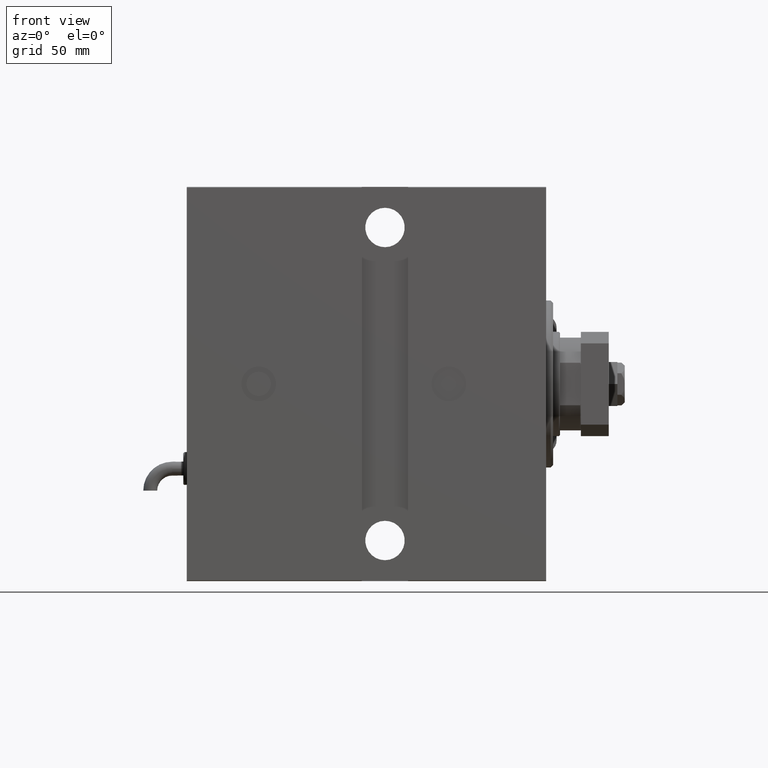
[diagram: clean part render]
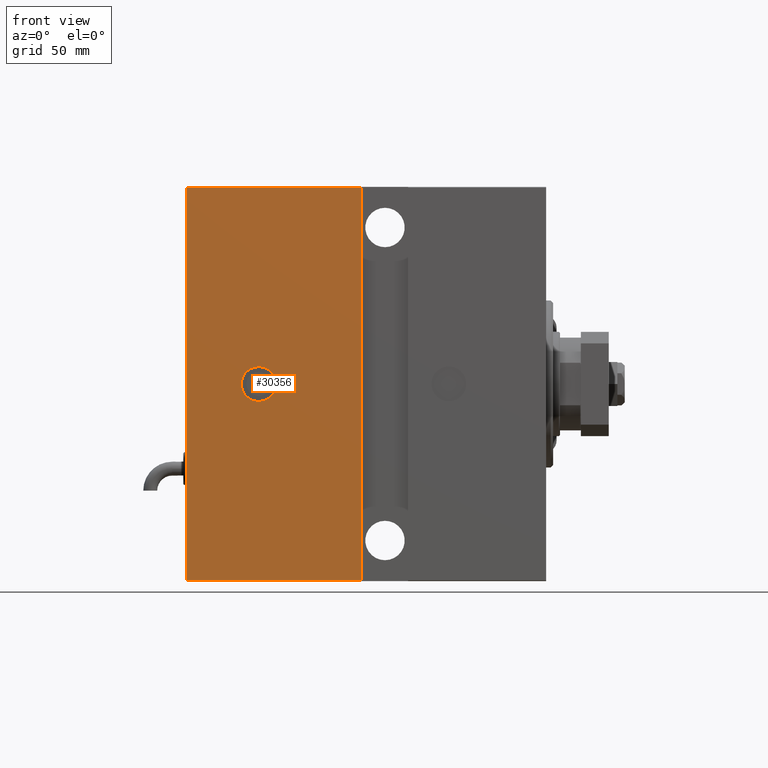
[diagram: same view with one face highlighted and labeled with its STEP entity id]
A machine part, front view. The second image highlights one B-rep face of the part: STEP entity #30356.
In plain terms, the highlighted planar face has unit normal (0, 1, 0).
Its self-contained STEP definition (entity closure, byte-faithful):
#1196 = ORIENTED_EDGE ( 'NONE', *, *, #16588, .F. ) ;
#1660 = VERTEX_POINT ( 'NONE', #29541 ) ;
#3494 = VECTOR ( 'NONE', #40045, 1000.000000000000000 ) ;
#4276 = CARTESIAN_POINT ( 'NONE',  ( 123.9999999999999858, 70.00000000000002842, -7.523163845262640051E-32 ) ) ;
#5946 = DIRECTION ( 'NONE',  ( 0.000000000000000000, -0.000000000000000000, -1.000000000000000000 ) ) ;
#7485 = AXIS2_PLACEMENT_3D ( 'NONE', #4276, #28660, #55222 ) ;
#8477 = CARTESIAN_POINT ( 'NONE',  ( 155.0000000000000000, 70.00000000000002842, 84.70000000000007390 ) ) ;
#9570 = ORIENTED_EDGE ( 'NONE', *, *, #51194, .F. ) ;
#10081 = CARTESIAN_POINT ( 'NONE',  ( 79.50000000000004263, 70.00000000000002842, 84.70000000000007390 ) ) ;
#10413 = LINE ( 'NONE', #36096, #51447 ) ;
#10675 = FACE_BOUND ( 'NONE', #11922, .T. ) ;
#11922 = EDGE_LOOP ( 'NONE', ( #28643, #9570 ) ) ;
#12749 = VERTEX_POINT ( 'NONE', #49871 ) ;
#13237 = CARTESIAN_POINT ( 'NONE',  ( 123.9999999999999858, 70.00000000000002842, 7.499999999999999112 ) ) ;
#13686 = DIRECTION ( 'NONE',  ( -1.000000000000000000, 0.000000000000000000, 0.000000000000000000 ) ) ;
#15885 = VECTOR ( 'NONE', #13686, 1000.000000000000000 ) ;
#16206 = VERTEX_POINT ( 'NONE', #43638 ) ;
#16588 = EDGE_CURVE ( 'NONE', #16206, #12749, #10413, .T. ) ;
#18491 = AXIS2_PLACEMENT_3D ( 'NONE', #41660, #49134, #5946 ) ;
#21668 = CARTESIAN_POINT ( 'NONE',  ( 123.9999999999999858, 70.00000000000002842, -7.523163845262640051E-32 ) ) ;
#22052 = LINE ( 'NONE', #8477, #3494 ) ;
#22559 = DIRECTION ( 'NONE',  ( -1.632680918566407040E-16, -0.000000000000000000, -1.000000000000000000 ) ) ;
#24595 = ORIENTED_EDGE ( 'NONE', *, *, #32812, .T. ) ;
#26358 = VECTOR ( 'NONE', #22559, 1000.000000000000000 ) ;
#27551 = CARTESIAN_POINT ( 'NONE',  ( 79.50000000000001421, 70.00000000000002842, -85.00000000000000000 ) ) ;
#28643 = ORIENTED_EDGE ( 'NONE', *, *, #42712, .F. ) ;
#28660 = DIRECTION ( 'NONE',  ( 0.000000000000000000, 1.000000000000000000, 1.814410260041850832E-16 ) ) ;
#29508 = VERTEX_POINT ( 'NONE', #10081 ) ;
#29541 = CARTESIAN_POINT ( 'NONE',  ( 123.9999999999999858, 70.00000000000002842, -7.499999999999999112 ) ) ;
#30356 = ADVANCED_FACE ( 'NONE', ( #10675, #35568 ), #31436, .F. ) ;
#31436 = PLANE ( 'NONE',  #18491 ) ;
#32812 = EDGE_CURVE ( 'NONE', #29508, #12749, #22052, .T. ) ;
#34662 = DIRECTION ( 'NONE',  ( 0.000000000000000000, 1.000000000000000000, 1.814410260041850832E-16 ) ) ;
#35551 = EDGE_CURVE ( 'NONE', #16206, #54161, #39939, .T. ) ;
#35568 = FACE_OUTER_BOUND ( 'NONE', #42078, .T. ) ;
#36096 = CARTESIAN_POINT ( 'NONE',  ( 155.0000000000000000, 70.00000000000002842, -85.00000000000000000 ) ) ;
#37215 = CIRCLE ( 'NONE', #52346, 7.499999999999999112 ) ;
#39249 = ORIENTED_EDGE ( 'NONE', *, *, #39407, .F. ) ;
#39376 = DIRECTION ( 'NONE',  ( 0.000000000000000000, 0.000000000000000000, 1.000000000000000000 ) ) ;
#39407 = EDGE_CURVE ( 'NONE', #29508, #54161, #48814, .T. ) ;
#39939 = LINE ( 'NONE', #53223, #15885 ) ;
#40045 = DIRECTION ( 'NONE',  ( 1.000000000000000000, 0.000000000000000000, 0.000000000000000000 ) ) ;
#41660 = CARTESIAN_POINT ( 'NONE',  ( 155.0000000000000000, 70.00000000000002842, -85.00000000000000000 ) ) ;
#42078 = EDGE_LOOP ( 'NONE', ( #1196, #49672, #39249, #24595 ) ) ;
#42712 = EDGE_CURVE ( 'NONE', #46354, #1660, #47071, .T. ) ;
#43638 = CARTESIAN_POINT ( 'NONE',  ( 155.0000000000000000, 70.00000000000002842, -84.70000000000001705 ) ) ;
#44322 = CARTESIAN_POINT ( 'NONE',  ( 79.50000000000001421, 70.00000000000002842, -84.70000000000001705 ) ) ;
#45820 = DIRECTION ( 'NONE',  ( 0.000000000000000000, 0.000000000000000000, 1.000000000000000000 ) ) ;
#46354 = VERTEX_POINT ( 'NONE', #13237 ) ;
#47071 = CIRCLE ( 'NONE', #7485, 7.499999999999999112 ) ;
#48814 = LINE ( 'NONE', #27551, #26358 ) ;
#49134 = DIRECTION ( 'NONE',  ( 0.000000000000000000, -1.000000000000000000, 0.000000000000000000 ) ) ;
#49672 = ORIENTED_EDGE ( 'NONE', *, *, #35551, .T. ) ;
#49871 = CARTESIAN_POINT ( 'NONE',  ( 155.0000000000000000, 70.00000000000002842, 84.70000000000007390 ) ) ;
#51194 = EDGE_CURVE ( 'NONE', #1660, #46354, #37215, .T. ) ;
#51447 = VECTOR ( 'NONE', #45820, 1000.000000000000000 ) ;
#52346 = AXIS2_PLACEMENT_3D ( 'NONE', #21668, #34662, #39376 ) ;
#53223 = CARTESIAN_POINT ( 'NONE',  ( 155.0000000000000000, 70.00000000000002842, -84.70000000000001705 ) ) ;
#54161 = VERTEX_POINT ( 'NONE', #44322 ) ;
#55222 = DIRECTION ( 'NONE',  ( 0.000000000000000000, 0.000000000000000000, 1.000000000000000000 ) ) ;